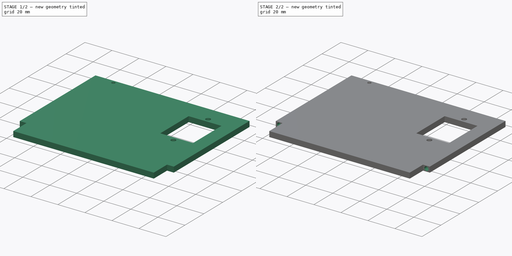
[diagram: build sequence overview — one tinted view per stage of 2, left to right]
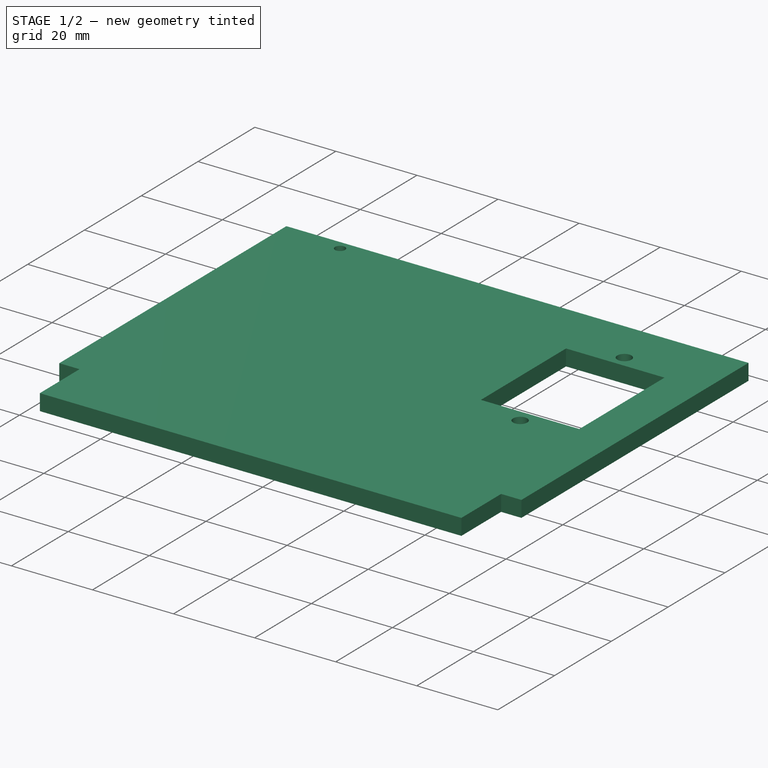
[diagram: stage 1 of 2 — iso view after this stage's code; geometry added in this stage tinted green]
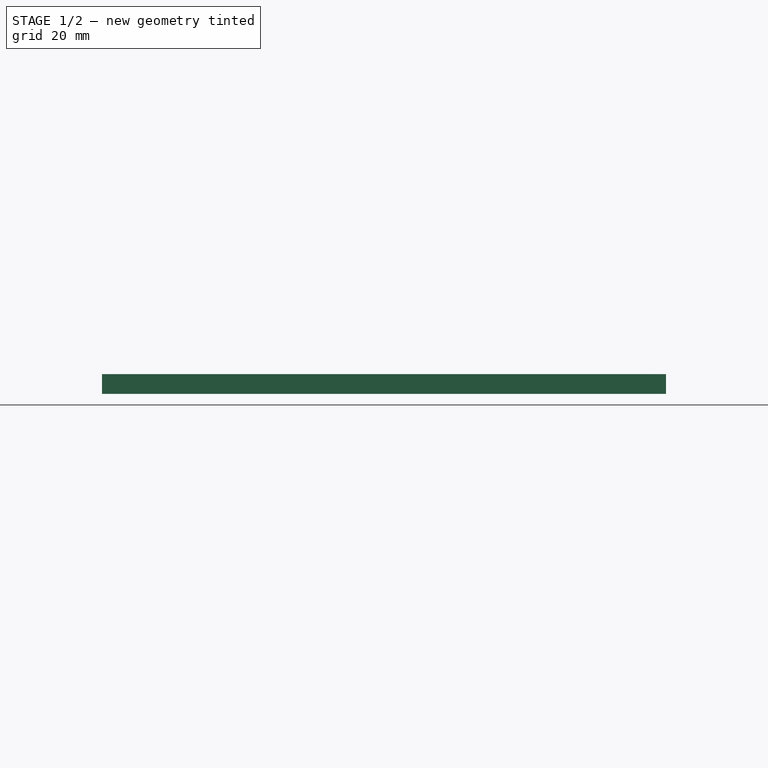
[diagram: stage 1 of 2 — front view after this stage's code; geometry added in this stage tinted green]
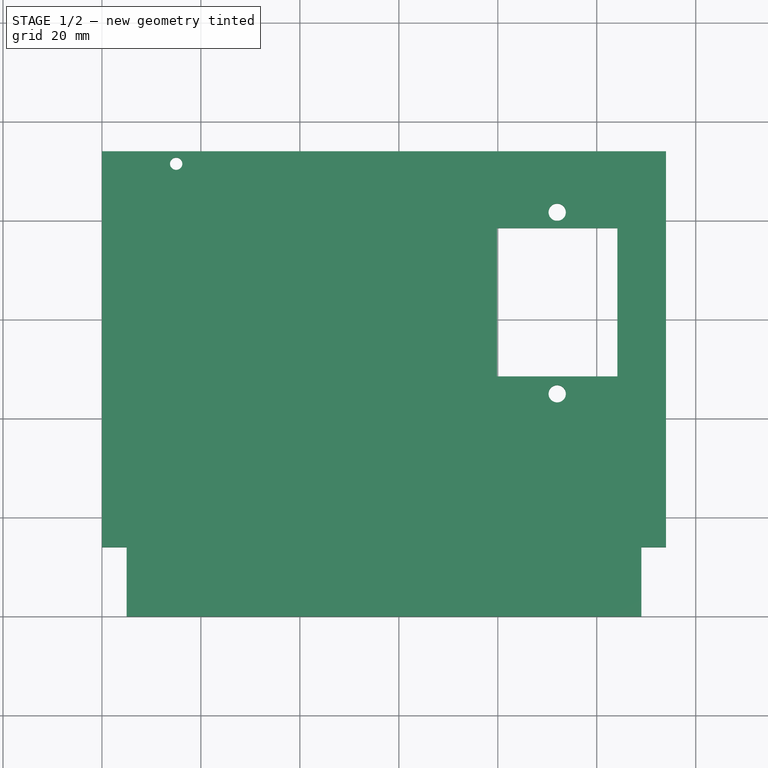
[diagram: stage 1 of 2 — top view after this stage's code; geometry added in this stage tinted green]
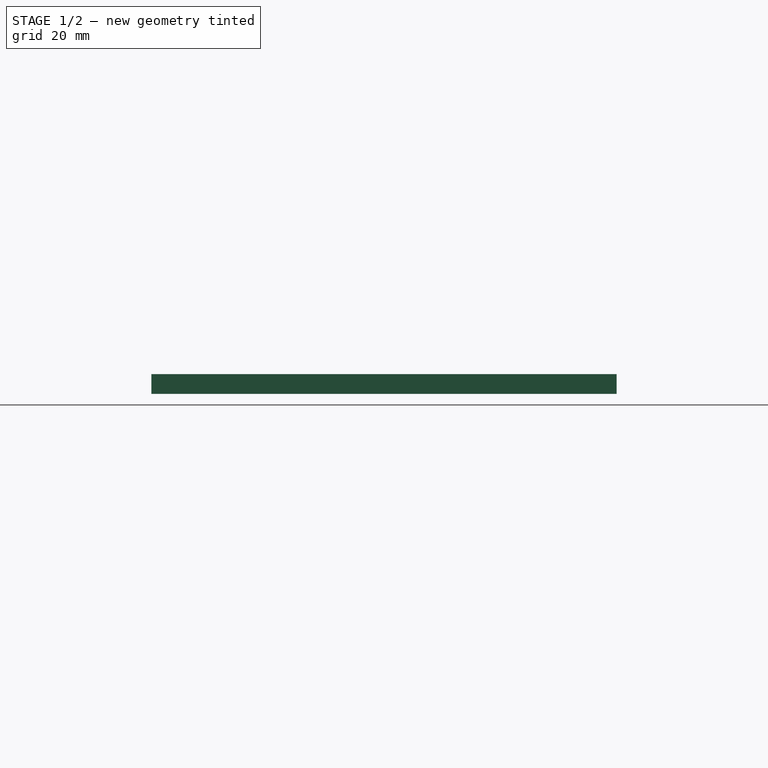
[diagram: stage 1 of 2 — right view after this stage's code; geometry added in this stage tinted green]
FCSTD DOCUMENT  (FreeCAD 1.0R38641 +468 (Git))
Label: Power-Box-Back
License: All rights reserved
LicenseURL: https://en.wikipedia.org/wiki/All_rights_reserved
objects: Sketcher::SketchObject×2, PartDesign::Pad×1, PartDesign::Pocket×1, PartDesign::Body×1
note: 11 computed .brp shape members not serialized (recipe doc carries the construction recipe); baked Part::Feature solids carry a one-line shape summary decoded from their .brp

FEATURE [Sketcher::SketchObject] Sketch207  label="pb-back-base"
  ArcFitTolerance = 1e-06
  AttachmentSupport = -> [XY_Plane023]
  FullyConstrained = true
  MakeInternals = false
  MapMode = 5
  sketch-geometry (15):
    g0: LineSegment StartX=5 StartY=14 StartZ=0 EndX=5 EndY=0 EndZ=0
    g1: LineSegment StartX=5 StartY=0 StartZ=0 EndX=109 EndY=0 EndZ=0
    g2: LineSegment StartX=109 StartY=0 StartZ=0 EndX=109 EndY=14 EndZ=0
    g3: LineSegment StartX=109 StartY=14 StartZ=0 EndX=5 EndY=14 EndZ=0
    g4: LineSegment StartX=0 StartY=94 StartZ=0 EndX=0 EndY=14 EndZ=0
    g5: LineSegment StartX=0 StartY=14 StartZ=0 EndX=114 EndY=14 EndZ=0
    g6: LineSegment StartX=114 StartY=14 StartZ=0 EndX=114 EndY=94 EndZ=0
    g7: LineSegment StartX=114 StartY=94 StartZ=0 EndX=0 EndY=94 EndZ=0
    g8: LineSegment StartX=79.85 StartY=78.5 StartZ=0 EndX=79.85 EndY=48.5 EndZ=0
    g9: LineSegment StartX=79.85 StartY=48.5 StartZ=0 EndX=104.15 EndY=48.5 EndZ=0
    g10: LineSegment StartX=104.15 StartY=48.5 StartZ=0 EndX=104.15 EndY=78.5 EndZ=0
    g11: LineSegment StartX=104.15 StartY=78.5 StartZ=0 EndX=79.85 EndY=78.5 EndZ=0
    g12: Circle CenterX=92 CenterY=45 CenterZ=0 NormalX=0 NormalY=0 NormalZ=1 AngleXU=0 Radius=1.75
    g13: Circle CenterX=92 CenterY=81.7 CenterZ=0 NormalX=0 NormalY=0 NormalZ=1 AngleXU=0 Radius=1.75
    g14: Circle CenterX=15 CenterY=91.5 CenterZ=0 NormalX=0 NormalY=0 NormalZ=1 AngleXU=0 Radius=1.25
  constraints (45):
    c: Coincident(g0,g1)
    c: Coincident(g1,g2)
    c: Coincident(g2,g3)
    c: Coincident(g3,g0)
    c: Vertical(g0)
    c: Vertical(g2)
    c: Horizontal(g1)
    c: Horizontal(g3)
    c: Distance(g0,g2) = 104
    c: Distance(g1,g3) = 14
    c: DistanceX(g-1,g0) = 5
    c: DistanceY(g-1,g0) = 0
    c: Coincident(g4,g5)
    c: Coincident(g5,g6)
    c: Coincident(g6,g7)
    c: Coincident(g7,g4)
    c: Vertical(g4)
    c: Vertical(g6)
    c: Horizontal(g5)
    c: Horizontal(g7)
    c: Distance(g4,g6) = 114
    c: Distance(g5,g7) = 80
    c: DistanceX(g-1,g4) = 0
    c: DistanceY(g2,g5) = 0
    c: Coincident(g8,g9)
    c: Coincident(g9,g10)
    c: Coincident(g10,g11)
    c: Coincident(g11,g8)
    c: Vertical(g8)
    c: Vertical(g10)
    c: Horizontal(g9)
    c: Horizontal(g11)
    c: Distance(g8,g10) = 24.3
    c: Distance(g9,g11) = 30
    c: Diameter(g12) = 3.5
    c: DistanceY(g-1,g8) = 48.5
    c: DistanceX(g-1,g8) = 79.85
    c: DistanceY(g-1,g12) = 45
    c: Diameter(g13) = 3.5
    c: DistanceY(g12,g13) = 36.7
    c: DistanceX(g12,g13) = 0
    c: DistanceX(g-1,g12) = 92
    c: Diameter(g14) = 2.5
    c: DistanceY(g-1,g14) = 91.5
    c: DistanceX(g-1,g14) = 15
FEATURE [PartDesign::Pad] Pad103
  Direction = (0,0,1)
  Length = 4
  Length2 = 10
  Profile = -> Sketch207
  ReferenceAxis = -> Sketch207 [N_Axis]
  Refine = true
  Suppressed = false
  Type = 0
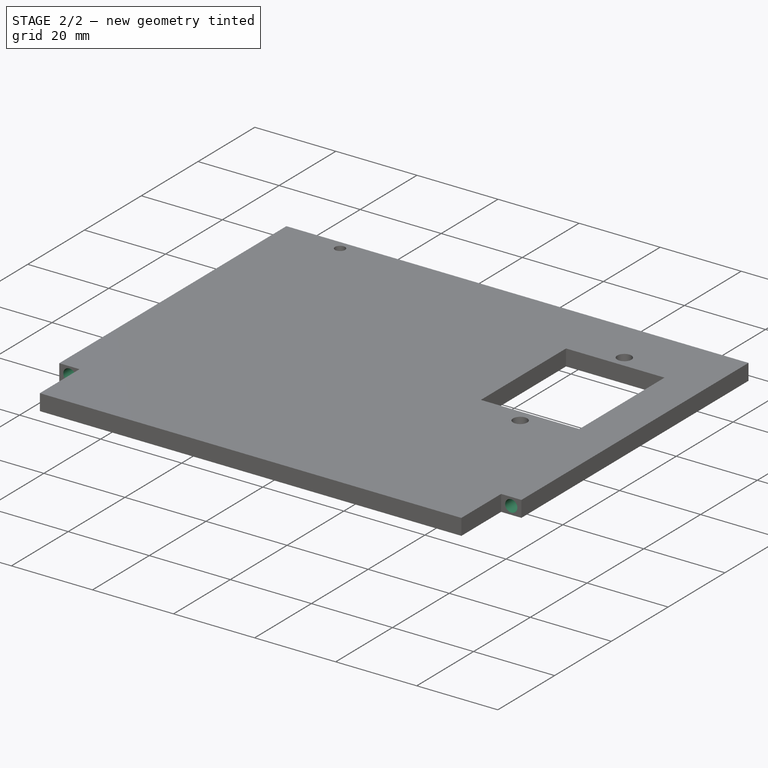
[diagram: stage 2 of 2 — iso view after this stage's code; geometry added in this stage tinted green]
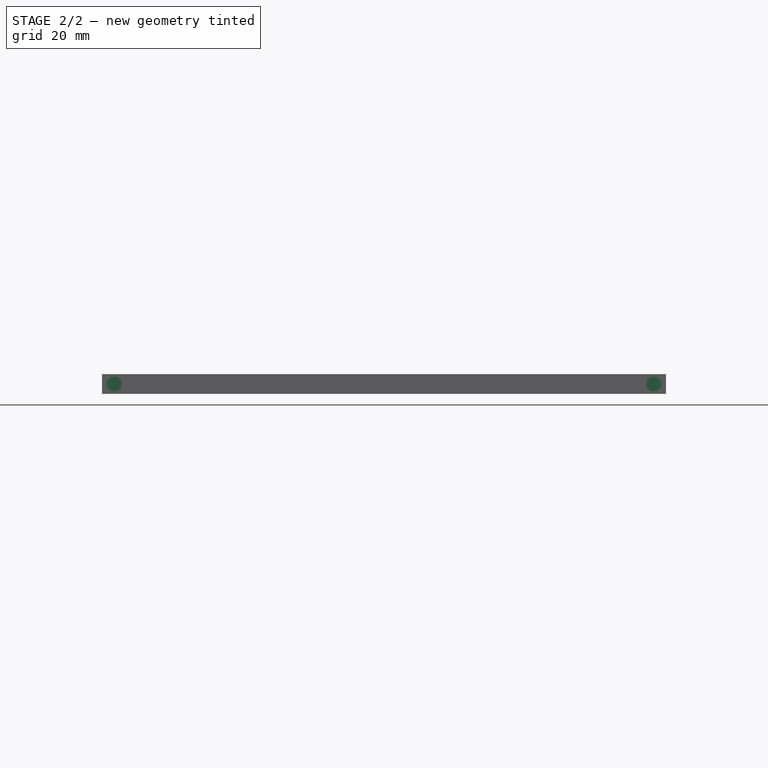
[diagram: stage 2 of 2 — front view after this stage's code; geometry added in this stage tinted green]
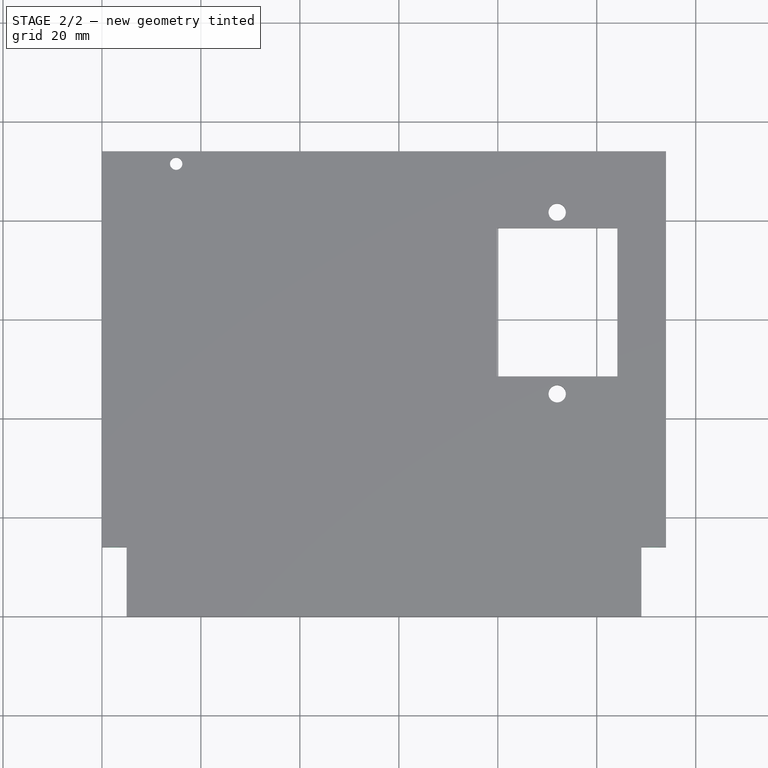
[diagram: stage 2 of 2 — top view after this stage's code; geometry added in this stage tinted green]
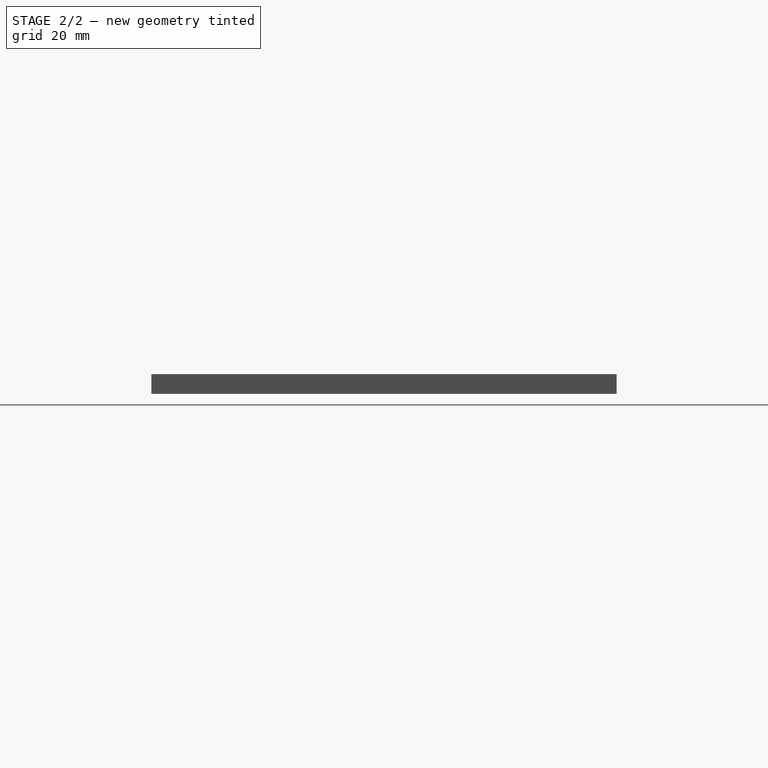
[diagram: stage 2 of 2 — right view after this stage's code; geometry added in this stage tinted green]
FEATURE [Sketcher::SketchObject] Sketch208
  ArcFitTolerance = 1e-06
  AttachmentSupport = -> [Pad103]
  FullyConstrained = true
  MakeInternals = false
  MapMode = 5
  Placement = pos=(0,14,0) rot=(1,0,0;1.5708rad)
  sketch-geometry (2):
    g0: Circle CenterX=2.5 CenterY=2 CenterZ=0 NormalX=0 NormalY=0 NormalZ=1 AngleXU=0 Radius=1.5
    g1: Circle CenterX=111.5 CenterY=2 CenterZ=0 NormalX=0 NormalY=0 NormalZ=1 AngleXU=0 Radius=1.5
  constraints (6):
    c: Diameter(g0) = 3
    c: DistanceY(g-1,g0) = 2
    c: DistanceX(g-1,g0) = 2.5
    c: Diameter(g1) = 3
    c: DistanceY(g-1,g1) = 2
    c: DistanceX(g-1,g1) = 111.5
FEATURE [PartDesign::Pocket] Pocket120
  BaseFeature = -> Pad103
  Direction = (0,1,-2e-16)
  Length = 11
  Length2 = 5
  Profile = -> Sketch208
  ReferenceAxis = -> Sketch208 [N_Axis]
  Refine = true
  Suppressed = false
  Type = 0
FEATURE [PartDesign::Body] Body023  label="Power-Box-Back"
  AllowCompound = false
  Group = -> [Sketch207,Pad103,Sketch208,Pocket120]
  Origin = -> Origin023
  Tip = -> Pocket120
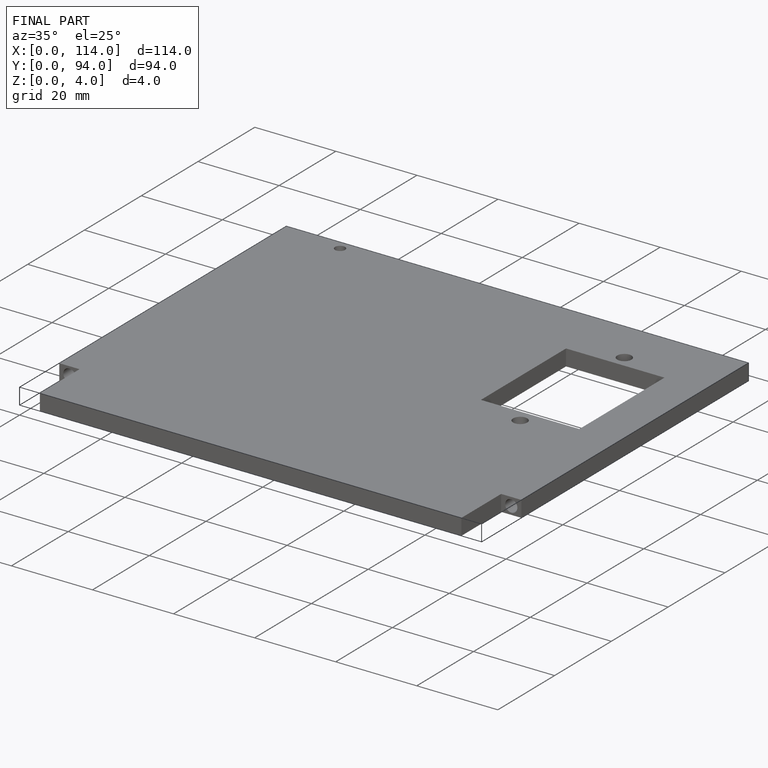
[diagram: finished part — iso view with bounding-box wireframe]
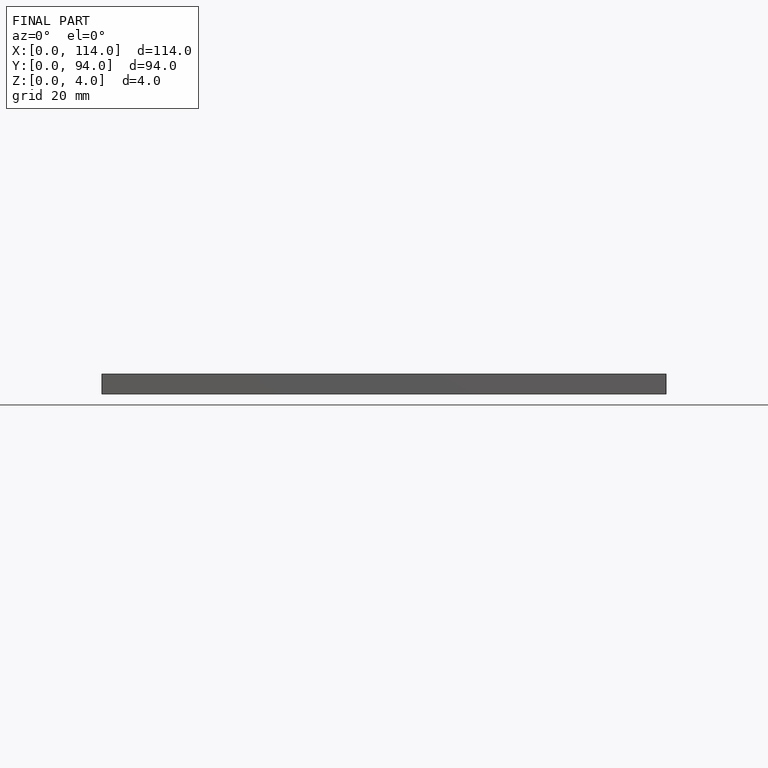
[diagram: finished part — front view with bounding-box wireframe]
